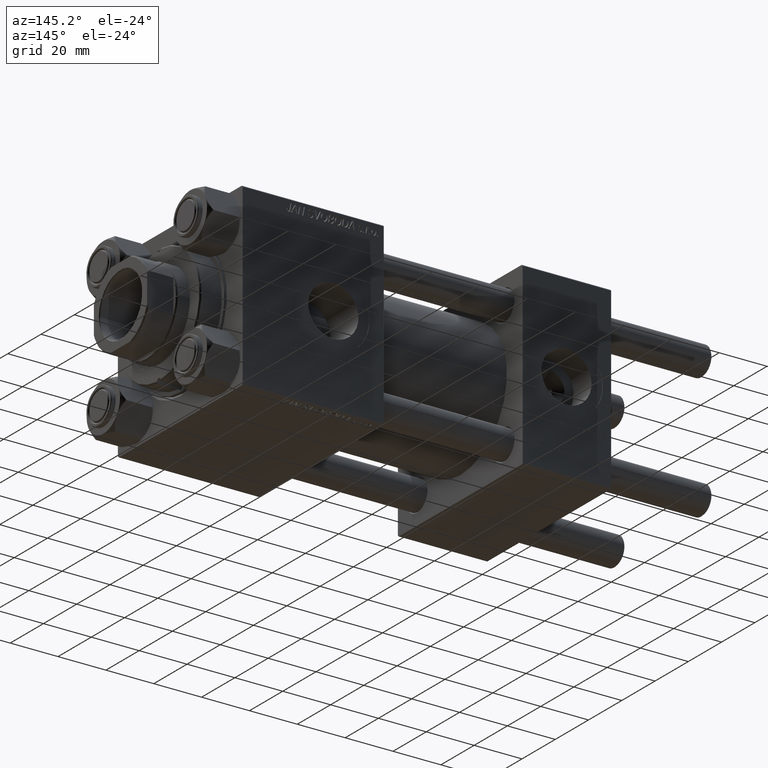
[diagram: clean part render]
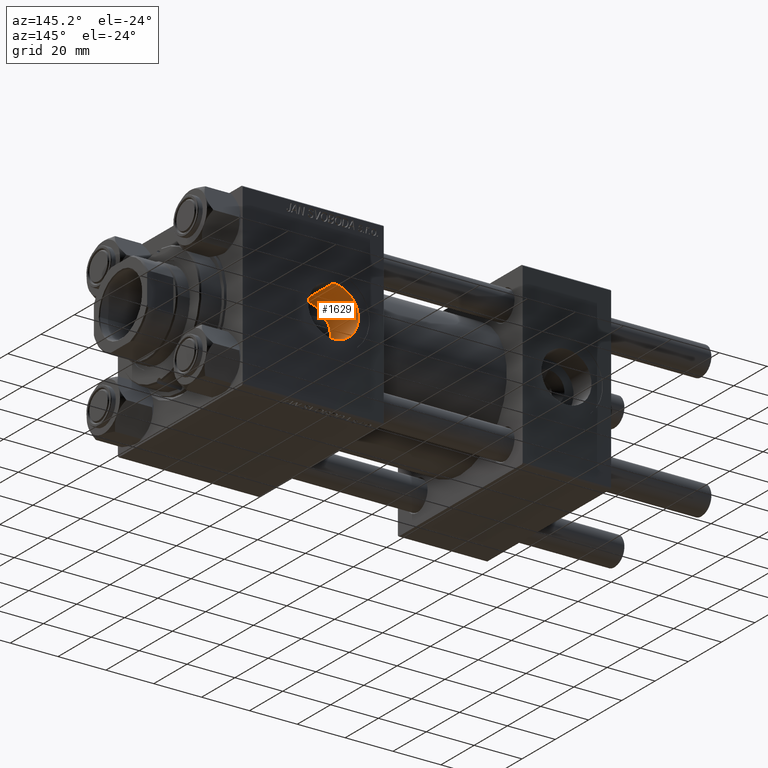
[diagram: same view with one face highlighted and labeled with its STEP entity id]
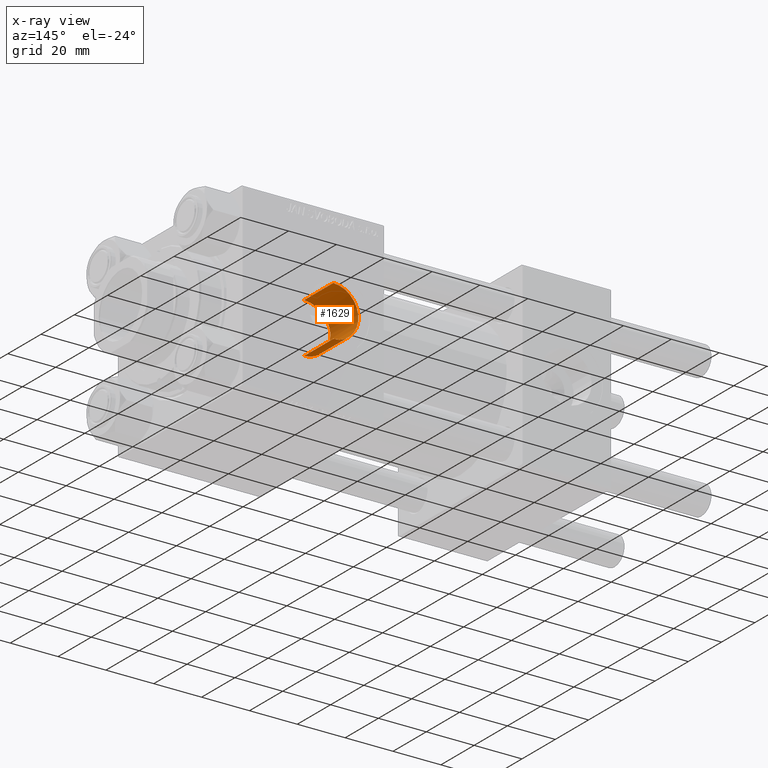
[diagram: x-ray of the same camera — body ghosted, the highlighted face saturated]
A machine part, auxiliary view. The second image highlights one B-rep face of the part: STEP entity #1629.
The next image is the same camera in x-ray: the body ghosted, the highlighted face saturated — about 0% of this face is hidden behind the body in this view.
In plain terms, the highlighted cylindrical surface (edge-blend (fillet) strip) has radius 10.48 mm, axis along (0, 1, 0).
Its self-contained STEP definition (entity closure, byte-faithful):
#1096 = VECTOR ( 'NONE', #30521, 1000.000000000000000 ) ;
#1178 = DIRECTION ( 'NONE',  ( 0.000000000000000000, 1.000000000000000000, 0.000000000000000000 ) ) ;
#1629 = ADVANCED_FACE ( 'NONE', ( #50999 ), #46545, .F. ) ;
#2716 = ORIENTED_EDGE ( 'NONE', *, *, #3692, .F. ) ;
#3178 = CARTESIAN_POINT ( 'NONE',  ( 107.1469188134909558, 19.69999999999999929, 5.670978751503136017 ) ) ;
#3270 = CARTESIAN_POINT ( 'NONE',  ( 105.7786067667528869, 20.34891120222643934, -2.496570396136860825 ) ) ;
#3692 = EDGE_CURVE ( 'NONE', #44690, #32071, #40273, .T. ) ;
#3784 = CARTESIAN_POINT ( 'NONE',  ( 105.5172831935747695, 20.48087064858673045, -1.015322526837485251 ) ) ;
#4962 = DIRECTION ( 'NONE',  ( 0.000000000000000000, 0.000000000000000000, 1.000000000000000000 ) ) ;
#5818 = ORIENTED_EDGE ( 'NONE', *, *, #24554, .T. ) ;
#7289 = EDGE_CURVE ( 'NONE', #47844, #28380, #37856, .T. ) ;
#7967 = CARTESIAN_POINT ( 'NONE',  ( 106.6115926141090995, 19.93948595210241947, -4.839045947105454104 ) ) ;
#10589 = CARTESIAN_POINT ( 'NONE',  ( 115.9600000000000080, 19.69999999999999929, 10.47999999999998622 ) ) ;
#10613 = ORIENTED_EDGE ( 'NONE', *, *, #27688, .F. ) ;
#11379 = CARTESIAN_POINT ( 'NONE',  ( 115.9600000000000080, 37.29999999999999716, 0.000000000000000000 ) ) ;
#11655 = CARTESIAN_POINT ( 'NONE',  ( 105.8419722005382226, 20.31723989537107400, -2.742060038836109825 ) ) ;
#12482 = VERTEX_POINT ( 'NONE', #33370 ) ;
#14331 = CARTESIAN_POINT ( 'NONE',  ( 115.9600000000000080, 19.69999999999999929, 0.000000000000000000 ) ) ;
#14338 = CIRCLE ( 'NONE', #36954, 10.47999999999998622 ) ;
#15307 = CARTESIAN_POINT ( 'NONE',  ( 105.5161845181897604, 20.48143125823819588, 1.004866249503102438 ) ) ;
#16300 = CARTESIAN_POINT ( 'NONE',  ( 115.9600000000000080, 37.29999999999999716, 10.47999999999998622 ) ) ;
#18977 = CARTESIAN_POINT ( 'NONE',  ( 105.6255867792278593, 20.42593274917713231, -1.758694662385848817 ) ) ;
#19030 = DIRECTION ( 'NONE',  ( -0.000000000000000000, 1.000000000000000000, -0.000000000000000000 ) ) ;
#19737 = CARTESIAN_POINT ( 'NONE',  ( 106.8791376073645552, 19.81979581268087998, 5.254828803985208019 ) ) ;
#23174 = CARTESIAN_POINT ( 'NONE',  ( 105.6705857011075551, 20.40317292874659216, -2.005389064153343170 ) ) ;
#23662 = DIRECTION ( 'NONE',  ( 0.000000000000000000, 1.000000000000000000, 0.000000000000000000 ) ) ;
#23674 = CARTESIAN_POINT ( 'NONE',  ( 106.0499890356276751, 20.21417439003274197, 3.445486302767975406 ) ) ;
#24146 = VECTOR ( 'NONE', #38490, 1000.000000000000000 ) ;
#24252 = EDGE_CURVE ( 'NONE', #47844, #12482, #14338, .T. ) ;
#24554 = EDGE_CURVE ( 'NONE', #28380, #42657, #36096, .T. ) ;
#24854 = CARTESIAN_POINT ( 'NONE',  ( 115.9600000000000080, 19.69999999999999929, 0.000000000000000000 ) ) ;
#24913 = ORIENTED_EDGE ( 'NONE', *, *, #7289, .T. ) ;
#27688 = EDGE_CURVE ( 'NONE', #12482, #44690, #43485, .T. ) ;
#27708 = AXIS2_PLACEMENT_3D ( 'NONE', #11379, #23662, #34949 ) ;
#28380 = VERTEX_POINT ( 'NONE', #31955 ) ;
#30297 = AXIS2_PLACEMENT_3D ( 'NONE', #14331, #19030, #31075 ) ;
#30521 = DIRECTION ( 'NONE',  ( -0.000000000000000000, 1.000000000000000000, -0.000000000000000000 ) ) ;
#31075 = DIRECTION ( 'NONE',  ( 0.000000000000000000, 0.000000000000000000, 1.000000000000000000 ) ) ;
#31140 = LINE ( 'NONE', #46609, #24146 ) ;
#31275 = CARTESIAN_POINT ( 'NONE',  ( 106.2271360337296073, 20.12746913209450383, 3.917750971055686815 ) ) ;
#31298 = EDGE_LOOP ( 'NONE', ( #40139, #24913, #5818, #45206, #2716, #10613 ) ) ;
#31955 = CARTESIAN_POINT ( 'NONE',  ( 115.9600000000000080, 37.29999999999999716, -10.47999999999998622 ) ) ;
#32044 = CARTESIAN_POINT ( 'NONE',  ( 105.7673154720388595, 20.35424640813840469, 2.487745021098876741 ) ) ;
#32071 = VERTEX_POINT ( 'NONE', #10589 ) ;
#33370 = CARTESIAN_POINT ( 'NONE',  ( 107.1469188134909558, 19.69999999999999929, -5.670978751503136017 ) ) ;
#34949 = DIRECTION ( 'NONE',  ( 0.000000000000000000, 0.000000000000000000, 1.000000000000000000 ) ) ;
#34961 = CARTESIAN_POINT ( 'NONE',  ( 107.1469188134909558, 19.69999999999999929, 5.670978751503136017 ) ) ;
#35214 = CARTESIAN_POINT ( 'NONE',  ( 106.1990889019116793, 20.14034240301789325, -3.944957724923956466 ) ) ;
#35271 = CARTESIAN_POINT ( 'NONE',  ( 115.9600000000000080, 19.69999999999999929, -10.47999999999998622 ) ) ;
#36096 = CIRCLE ( 'NONE', #27708, 10.47999999999998622 ) ;
#36954 = AXIS2_PLACEMENT_3D ( 'NONE', #48347, #1178, #48863 ) ;
#37856 = LINE ( 'NONE', #42312, #1096 ) ;
#38490 = DIRECTION ( 'NONE',  ( -0.000000000000000000, 1.000000000000000000, -0.000000000000000000 ) ) ;
#39394 = CARTESIAN_POINT ( 'NONE',  ( 105.4805318702957919, 20.49972809763551851, -0.5153706619877231887 ) ) ;
#40139 = ORIENTED_EDGE ( 'NONE', *, *, #24252, .F. ) ;
#40273 = CIRCLE ( 'NONE', #44468, 10.47999999999998622 ) ;
#40828 = DIRECTION ( 'NONE',  ( 0.000000000000000000, 1.000000000000000000, 0.000000000000000000 ) ) ;
#42312 = CARTESIAN_POINT ( 'NONE',  ( 115.9600000000000080, 19.69999999999999929, -10.47999999999998622 ) ) ;
#42657 = VERTEX_POINT ( 'NONE', #16300 ) ;
#43485 = B_SPLINE_CURVE_WITH_KNOTS ( 'NONE', 3,
 ( #47514, #7967, #35214, #11655, #3270, #23174, #18977, #3784, #39394, #51193, #15307, #46997, #32044, #23674, #31275, #47258, #19737, #34961 ),
 .UNSPECIFIED., .F., .F.,
 ( 4, 2, 2, 2, 2, 2, 2, 2, 4 ),
 ( 1.734723475976807094E-18, 0.003014128661132449601, 0.003767660826415565253, 0.004521192991698681773, 0.006028257322264919151, 0.007535321652831155660, 0.009042385983397391302, 0.01054945031396362608, 0.01205651464452986259 ),
 .UNSPECIFIED. ) ;
#44468 = AXIS2_PLACEMENT_3D ( 'NONE', #24854, #40828, #4962 ) ;
#44690 = VERTEX_POINT ( 'NONE', #3178 ) ;
#45206 = ORIENTED_EDGE ( 'NONE', *, *, #48460, .F. ) ;
#46545 = CYLINDRICAL_SURFACE ( 'NONE', #30297, 10.47999999999998622 ) ;
#46609 = CARTESIAN_POINT ( 'NONE',  ( 115.9600000000000080, 19.69999999999999929, 10.47999999999998622 ) ) ;
#46997 = CARTESIAN_POINT ( 'NONE',  ( 105.6602886738675409, 20.40832668225151636, 1.999746132844943070 ) ) ;
#47258 = CARTESIAN_POINT ( 'NONE',  ( 106.6415749804432096, 19.93036420948180876, 4.821241418144452062 ) ) ;
#47514 = CARTESIAN_POINT ( 'NONE',  ( 107.1469188134909558, 19.69999999999999929, -5.670978751503136017 ) ) ;
#47844 = VERTEX_POINT ( 'NONE', #35271 ) ;
#48347 = CARTESIAN_POINT ( 'NONE',  ( 115.9600000000000080, 19.69999999999999929, 0.000000000000000000 ) ) ;
#48460 = EDGE_CURVE ( 'NONE', #32071, #42657, #31140, .T. ) ;
#48863 = DIRECTION ( 'NONE',  ( 0.000000000000000000, 0.000000000000000000, 1.000000000000000000 ) ) ;
#50999 = FACE_OUTER_BOUND ( 'NONE', #31298, .T. ) ;
#51193 = CARTESIAN_POINT ( 'NONE',  ( 105.4794795320436549, 20.50026607326724815, 0.4935077724537327293 ) ) ;